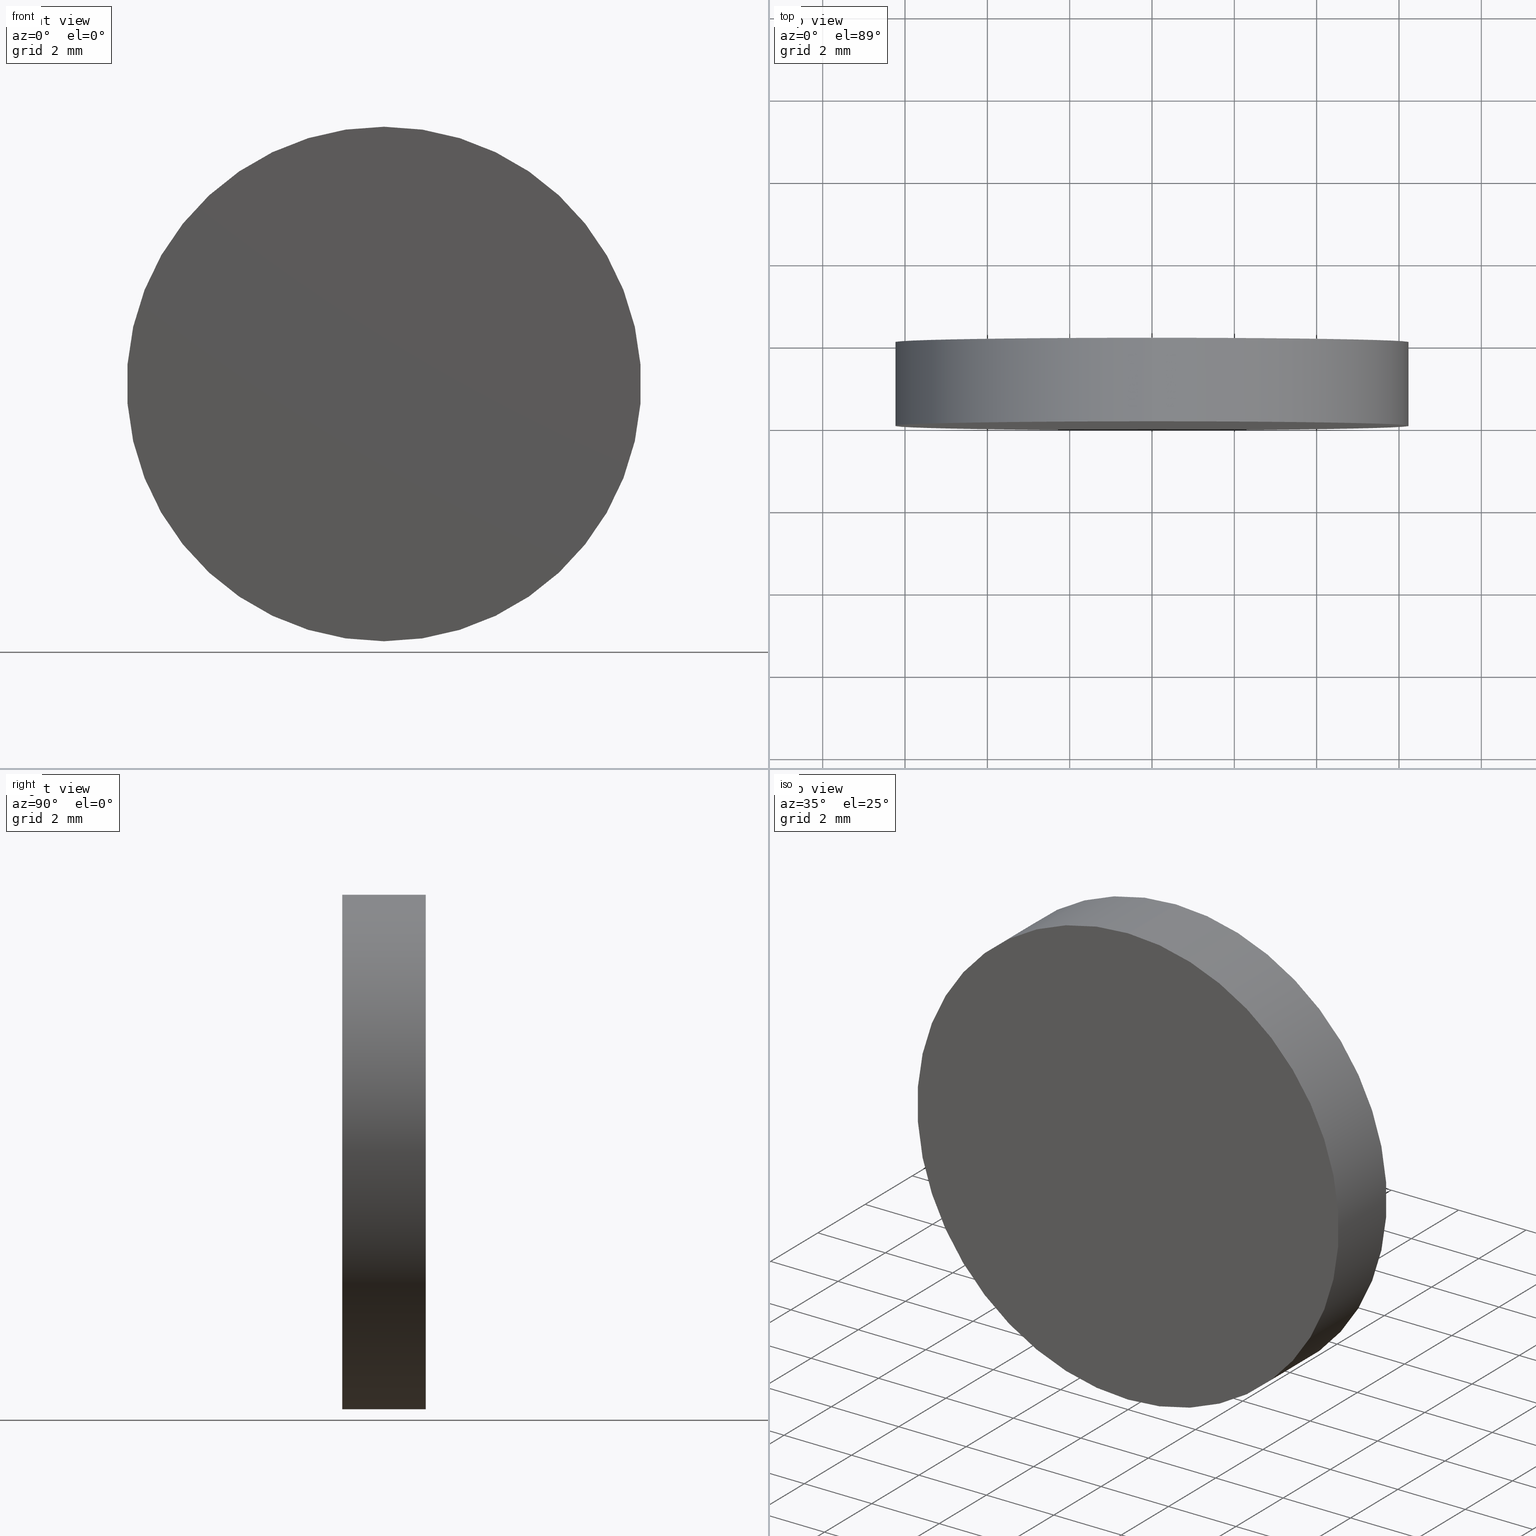
[diagram: canonical four-view strip — front | top / right | iso, engineering-drawing reading convention]
A machine part, canonical four-view strip (front | top / right | iso — engineering-drawing reading convention). The complete STEP part file that produces these views, byte-faithful:
ISO-10303-21;
HEADER;
FILE_DESCRIPTION (( 'STEP AP214' ),
    '1' );
FILE_NAME ('248575.STEP',
    '2019-08-02T08:39:40',
    ( 'user' ),
    ( '΢���й�' ),
    'SwSTEP 2.0',
    'SolidWorks 2016',
    '' );
FILE_SCHEMA (( 'AUTOMOTIVE_DESIGN' ));
ENDSEC;

DATA;
#1 = PRESENTATION_LAYER_ASSIGNMENT (  '', '', ( #79 ) ) ;
#2 = DIRECTION ( 'NONE',  ( 0.0000000000000000000, 0.0000000000000000000, 1.000000000000000000 ) ) ;
#3 = ORIENTED_EDGE ( 'NONE', *, *, #80, .F. ) ;
#4 = CIRCLE ( 'NONE', #98, 6.250000000000000000 ) ;
#5 = DIRECTION ( 'NONE',  ( 0.0000000000000000000, 1.000000000000000000, 0.0000000000000000000 ) ) ;
#6 = CARTESIAN_POINT ( 'NONE',  ( 7.654042494670957600E-016, 2.029999999999999800, 6.250000000000000000 ) ) ;
#7 =( NAMED_UNIT ( * ) SI_UNIT ( $, .STERADIAN. ) SOLID_ANGLE_UNIT ( ) );
#8 = CARTESIAN_POINT ( 'NONE',  ( 0.0000000000000000000, 2.029999999999999800, 0.0000000000000000000 ) ) ;
#9 =( NAMED_UNIT ( * ) PLANE_ANGLE_UNIT ( ) SI_UNIT ( $, .RADIAN. ) );
#10 = ORIENTED_EDGE ( 'NONE', *, *, #71, .T. ) ;
#11 = PRODUCT_DEFINITION_CONTEXT ( 'detailed design', #121, 'design' ) ;
#12 =( GEOMETRIC_REPRESENTATION_CONTEXT ( 3 ) GLOBAL_UNCERTAINTY_ASSIGNED_CONTEXT ( ( #118 ) ) GLOBAL_UNIT_ASSIGNED_CONTEXT ( ( #103, #9, #43 ) ) REPRESENTATION_CONTEXT ( 'NONE', 'WORKASPACE' ) );
#13 = EDGE_LOOP ( 'NONE', ( #126, #139 ) ) ;
#14 = ORIENTED_EDGE ( 'NONE', *, *, #57, .F. ) ;
#15 = PRODUCT_DEFINITION_FORMATION_WITH_SPECIFIED_SOURCE ( '�κ�', '', #81, .NOT_KNOWN. ) ;
#16 = DIRECTION ( 'NONE',  ( 0.0000000000000000000, 0.0000000000000000000, 1.000000000000000000 ) ) ;
#17 = PLANE ( 'NONE',  #84 ) ;
#18 = DIRECTION ( 'NONE',  ( 0.0000000000000000000, 0.0000000000000000000, -1.000000000000000000 ) ) ;
#19 = DIRECTION ( 'NONE',  ( 0.0000000000000000000, 1.000000000000000000, 0.0000000000000000000 ) ) ;
#20 = CARTESIAN_POINT ( 'NONE',  ( 0.0000000000000000000, 2.029999999999999800, -6.250000000000000000 ) ) ;
#21 = CARTESIAN_POINT ( 'NONE',  ( 0.0000000000000000000, 2.029999999999999800, 0.0000000000000000000 ) ) ;
#22 = VECTOR ( 'NONE', #106, 1000.000000000000000 ) ;
#23 = PRODUCT_RELATED_PRODUCT_CATEGORY ( 'part', '', ( #81 ) ) ;
#24 = CYLINDRICAL_SURFACE ( 'NONE', #107, 6.250000000000000000 ) ;
#25 = MECHANICAL_DESIGN_GEOMETRIC_PRESENTATION_REPRESENTATION (  '', ( #127 ), #12 ) ;
#26 = APPLICATION_PROTOCOL_DEFINITION ( 'draft international standard', 'automotive_design', 1998, #121 ) ;
#27 =( LENGTH_UNIT ( ) NAMED_UNIT ( * ) SI_UNIT ( .MILLI., .METRE. ) );
#28 = ORIENTED_EDGE ( 'NONE', *, *, #80, .T. ) ;
#29 = FILL_AREA_STYLE_COLOUR ( '', #87 ) ;
#30 = DIRECTION ( 'NONE',  ( 0.0000000000000000000, 0.0000000000000000000, -1.000000000000000000 ) ) ;
#31 = SURFACE_SIDE_STYLE ('',( #38 ) ) ;
#32 = SURFACE_STYLE_USAGE ( .BOTH. , #31 ) ;
#33 = CIRCLE ( 'NONE', #77, 6.250000000000000000 ) ;
#34 = MECHANICAL_DESIGN_GEOMETRIC_PRESENTATION_REPRESENTATION (  '', ( #79 ), #133 ) ;
#35 = ORIENTED_EDGE ( 'NONE', *, *, #57, .T. ) ;
#36 = AXIS2_PLACEMENT_3D ( 'NONE', #67, #110, #83 ) ;
#37 = EDGE_LOOP ( 'NONE', ( #14, #3, #94, #10 ) ) ;
#38 = SURFACE_STYLE_FILL_AREA ( #40 ) ;
#39 = LINE ( 'NONE', #20, #22 ) ;
#40 = FILL_AREA_STYLE ('',( #125 ) ) ;
#41 = DIRECTION ( 'NONE',  ( 0.0000000000000000000, 0.0000000000000000000, 1.000000000000000000 ) ) ;
#42 = COLOUR_RGB ( '',1.000000000000000000, 1.000000000000000000, 1.000000000000000000 ) ;
#43 =( NAMED_UNIT ( * ) SI_UNIT ( $, .STERADIAN. ) SOLID_ANGLE_UNIT ( ) );
#44 = VERTEX_POINT ( 'NONE', #73 ) ;
#45 = FACE_OUTER_BOUND ( 'NONE', #102, .T. ) ;
#46 = CARTESIAN_POINT ( 'NONE',  ( 0.0000000000000000000, 2.029999999999999800, 0.0000000000000000000 ) ) ;
#47 = EDGE_CURVE ( 'NONE', #44, #105, #39, .T. ) ;
#48 = CARTESIAN_POINT ( 'NONE',  ( 0.0000000000000000000, 0.0000000000000000000, 0.0000000000000000000 ) ) ;
#49 = PRODUCT_DEFINITION ( 'δ֪', '', #15, #11 ) ;
#50 = CLOSED_SHELL ( 'NONE', ( #66, #68, #55, #70 ) ) ;
#51 = FACE_OUTER_BOUND ( 'NONE', #37, .T. ) ;
#52 = CARTESIAN_POINT ( 'NONE',  ( 0.0000000000000000000, 2.029999999999999800, 0.0000000000000000000 ) ) ;
#53 = EDGE_CURVE ( 'NONE', #54, #44, #128, .T. ) ;
#54 = VERTEX_POINT ( 'NONE', #132 ) ;
#55 = ADVANCED_FACE ( 'NONE', ( #75 ), #17, .T. ) ;
#56 = SURFACE_STYLE_FILL_AREA ( #135 ) ;
#57 = EDGE_CURVE ( 'NONE', #54, #78, #109, .T. ) ;
#58 = EDGE_LOOP ( 'NONE', ( #28, #100 ) ) ;
#59 = PRESENTATION_STYLE_ASSIGNMENT (( #112 ) ) ;
#60 = EDGE_CURVE ( 'NONE', #78, #105, #33, .T. ) ;
#61 = DIRECTION ( 'NONE',  ( 0.0000000000000000000, -0.0000000000000000000, 1.000000000000000000 ) ) ;
#62 = CARTESIAN_POINT ( 'NONE',  ( 0.0000000000000000000, 0.0000000000000000000, -6.250000000000000000 ) ) ;
#63 = PRODUCT_CONTEXT ( 'NONE', #74, 'mechanical' ) ;
#64 = SURFACE_SIDE_STYLE ('',( #56 ) ) ;
#65 = AXIS2_PLACEMENT_3D ( 'NONE', #137, #116, #41 ) ;
#66 = ADVANCED_FACE ( 'NONE', ( #45 ), #122, .T. ) ;
#67 = CARTESIAN_POINT ( 'NONE',  ( 0.0000000000000000000, 0.0000000000000000000, 0.0000000000000000000 ) ) ;
#68 = ADVANCED_FACE ( 'NONE', ( #51 ), #24, .T. ) ;
#69 = PRESENTATION_LAYER_ASSIGNMENT (  '', '', ( #127 ) ) ;
#70 = ADVANCED_FACE ( 'NONE', ( #138 ), #136, .F. ) ;
#71 = EDGE_CURVE ( 'NONE', #105, #78, #4, .T. ) ;
#72 = ORIENTED_EDGE ( 'NONE', *, *, #53, .F. ) ;
#73 = CARTESIAN_POINT ( 'NONE',  ( 0.0000000000000000000, 2.029999999999999800, -6.250000000000000000 ) ) ;
#74 = APPLICATION_CONTEXT ( 'automotive_design' ) ;
#75 = FACE_OUTER_BOUND ( 'NONE', #58, .T. ) ;
#76 =( NAMED_UNIT ( * ) SI_UNIT ( $, .STERADIAN. ) SOLID_ANGLE_UNIT ( ) );
#77 = AXIS2_PLACEMENT_3D ( 'NONE', #93, #91, #90 ) ;
#78 = VERTEX_POINT ( 'NONE', #108 ) ;
#79 = STYLED_ITEM ( 'NONE', ( #59 ), #82 ) ;
#80 = EDGE_CURVE ( 'NONE', #44, #54, #86, .T. ) ;
#81 = PRODUCT ( '248575', '248575', '', ( #63 ) ) ;
#82 = ADVANCED_BREP_SHAPE_REPRESENTATION ( '248575', ( #134, #36 ), #92 ) ;
#83 = DIRECTION ( 'NONE',  ( 1.000000000000000000, 0.0000000000000000000, 0.0000000000000000000 ) ) ;
#84 = AXIS2_PLACEMENT_3D ( 'NONE', #52, #19, #85 ) ;
#85 = DIRECTION ( 'NONE',  ( 0.0000000000000000000, -0.0000000000000000000, 1.000000000000000000 ) ) ;
#86 = CIRCLE ( 'NONE', #120, 6.250000000000000000 ) ;
#87 = COLOUR_RGB ( '',1.000000000000000000, 1.000000000000000000, 1.000000000000000000 ) ;
#88 = SHAPE_DEFINITION_REPRESENTATION ( #129, #82 ) ;
#89 = ORIENTED_EDGE ( 'NONE', *, *, #47, .F. ) ;
#90 = DIRECTION ( 'NONE',  ( 0.0000000000000000000, 0.0000000000000000000, 1.000000000000000000 ) ) ;
#91 = DIRECTION ( 'NONE',  ( 0.0000000000000000000, 1.000000000000000000, 0.0000000000000000000 ) ) ;
#92 =( GEOMETRIC_REPRESENTATION_CONTEXT ( 3 ) GLOBAL_UNCERTAINTY_ASSIGNED_CONTEXT ( ( #97 ) ) GLOBAL_UNIT_ASSIGNED_CONTEXT ( ( #114, #130, #7 ) ) REPRESENTATION_CONTEXT ( 'NONE', 'WORKASPACE' ) );
#93 = CARTESIAN_POINT ( 'NONE',  ( 0.0000000000000000000, 0.0000000000000000000, 0.0000000000000000000 ) ) ;
#94 = ORIENTED_EDGE ( 'NONE', *, *, #47, .T. ) ;
#95 = PRESENTATION_STYLE_ASSIGNMENT (( #32 ) ) ;
#96 = DIRECTION ( 'NONE',  ( -0.0000000000000000000, -1.000000000000000000, -0.0000000000000000000 ) ) ;
#97 = UNCERTAINTY_MEASURE_WITH_UNIT (LENGTH_MEASURE( 1.000000000000000100E-005 ), #114, 'distance_accuracy_value', 'NONE');
#98 = AXIS2_PLACEMENT_3D ( 'NONE', #117, #115, #16 ) ;
#99 = DIRECTION ( 'NONE',  ( -0.0000000000000000000, -1.000000000000000000, -0.0000000000000000000 ) ) ;
#100 = ORIENTED_EDGE ( 'NONE', *, *, #53, .T. ) ;
#101 =( NAMED_UNIT ( * ) PLANE_ANGLE_UNIT ( ) SI_UNIT ( $, .RADIAN. ) );
#102 = EDGE_LOOP ( 'NONE', ( #72, #35, #123, #89 ) ) ;
#103 =( LENGTH_UNIT ( ) NAMED_UNIT ( * ) SI_UNIT ( .MILLI., .METRE. ) );
#104 = AXIS2_PLACEMENT_3D ( 'NONE', #21, #96, #30 ) ;
#105 = VERTEX_POINT ( 'NONE', #62 ) ;
#106 = DIRECTION ( 'NONE',  ( -0.0000000000000000000, -1.000000000000000000, -0.0000000000000000000 ) ) ;
#107 = AXIS2_PLACEMENT_3D ( 'NONE', #46, #99, #18 ) ;
#108 = CARTESIAN_POINT ( 'NONE',  ( 7.654042494670957600E-016, 0.0000000000000000000, 6.250000000000000000 ) ) ;
#109 = LINE ( 'NONE', #6, #140 ) ;
#110 = DIRECTION ( 'NONE',  ( 0.0000000000000000000, 0.0000000000000000000, 1.000000000000000000 ) ) ;
#111 = AXIS2_PLACEMENT_3D ( 'NONE', #48, #119, #61 ) ;
#112 = SURFACE_STYLE_USAGE ( .BOTH. , #64 ) ;
#113 = DIRECTION ( 'NONE',  ( -0.0000000000000000000, -1.000000000000000000, -0.0000000000000000000 ) ) ;
#114 =( LENGTH_UNIT ( ) NAMED_UNIT ( * ) SI_UNIT ( .MILLI., .METRE. ) );
#115 = DIRECTION ( 'NONE',  ( 0.0000000000000000000, 1.000000000000000000, 0.0000000000000000000 ) ) ;
#116 = DIRECTION ( 'NONE',  ( 0.0000000000000000000, 1.000000000000000000, 0.0000000000000000000 ) ) ;
#117 = CARTESIAN_POINT ( 'NONE',  ( 0.0000000000000000000, 0.0000000000000000000, 0.0000000000000000000 ) ) ;
#118 = UNCERTAINTY_MEASURE_WITH_UNIT (LENGTH_MEASURE( 1.000000000000000100E-005 ), #103, 'distance_accuracy_value', 'NONE');
#119 = DIRECTION ( 'NONE',  ( 0.0000000000000000000, 1.000000000000000000, 0.0000000000000000000 ) ) ;
#120 = AXIS2_PLACEMENT_3D ( 'NONE', #8, #5, #2 ) ;
#121 = APPLICATION_CONTEXT ( 'automotive_design' ) ;
#122 = CYLINDRICAL_SURFACE ( 'NONE', #104, 6.250000000000000000 ) ;
#123 = ORIENTED_EDGE ( 'NONE', *, *, #60, .T. ) ;
#124 = UNCERTAINTY_MEASURE_WITH_UNIT (LENGTH_MEASURE( 1.000000000000000100E-005 ), #27, 'distance_accuracy_value', 'NONE');
#125 = FILL_AREA_STYLE_COLOUR ( '', #42 ) ;
#126 = ORIENTED_EDGE ( 'NONE', *, *, #71, .F. ) ;
#127 = STYLED_ITEM ( 'NONE', ( #95 ), #134 ) ;
#128 = CIRCLE ( 'NONE', #65, 6.250000000000000000 ) ;
#129 = PRODUCT_DEFINITION_SHAPE ( 'NONE', 'NONE',  #49 ) ;
#130 =( NAMED_UNIT ( * ) PLANE_ANGLE_UNIT ( ) SI_UNIT ( $, .RADIAN. ) );
#131 = APPLICATION_PROTOCOL_DEFINITION ( 'draft international standard', 'automotive_design', 1998, #74 ) ;
#132 = CARTESIAN_POINT ( 'NONE',  ( 7.654042494670957600E-016, 2.029999999999999800, 6.250000000000000000 ) ) ;
#133 =( GEOMETRIC_REPRESENTATION_CONTEXT ( 3 ) GLOBAL_UNCERTAINTY_ASSIGNED_CONTEXT ( ( #124 ) ) GLOBAL_UNIT_ASSIGNED_CONTEXT ( ( #27, #101, #76 ) ) REPRESENTATION_CONTEXT ( 'NONE', 'WORKASPACE' ) );
#134 = MANIFOLD_SOLID_BREP ( '͹̨-����1', #50 ) ;
#135 = FILL_AREA_STYLE ('',( #29 ) ) ;
#136 = PLANE ( 'NONE',  #111 ) ;
#137 = CARTESIAN_POINT ( 'NONE',  ( 0.0000000000000000000, 2.029999999999999800, 0.0000000000000000000 ) ) ;
#138 = FACE_OUTER_BOUND ( 'NONE', #13, .T. ) ;
#139 = ORIENTED_EDGE ( 'NONE', *, *, #60, .F. ) ;
#140 = VECTOR ( 'NONE', #113, 1000.000000000000000 ) ;
ENDSEC;
END-ISO-10303-21;
